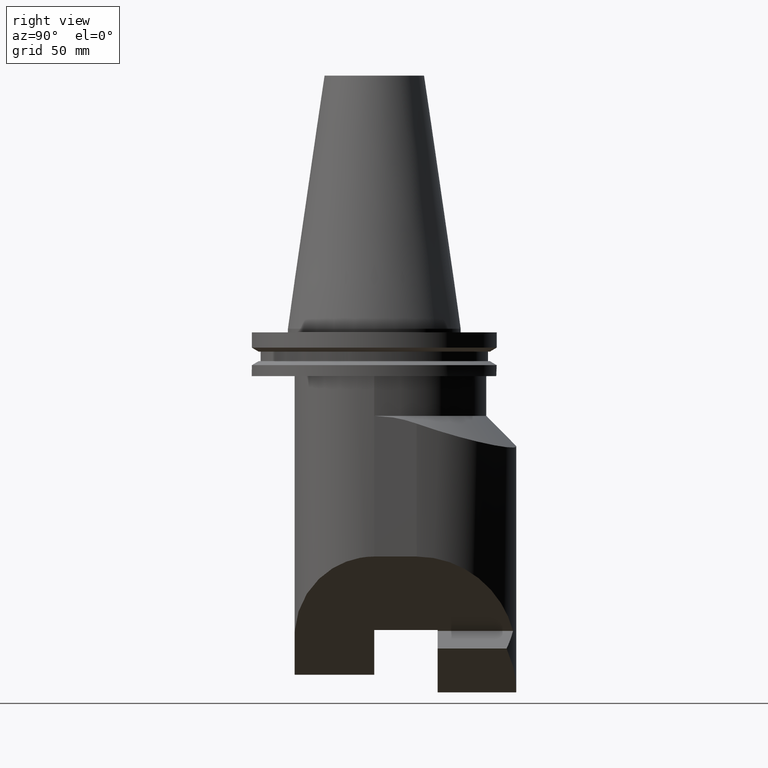
[diagram: clean part render]
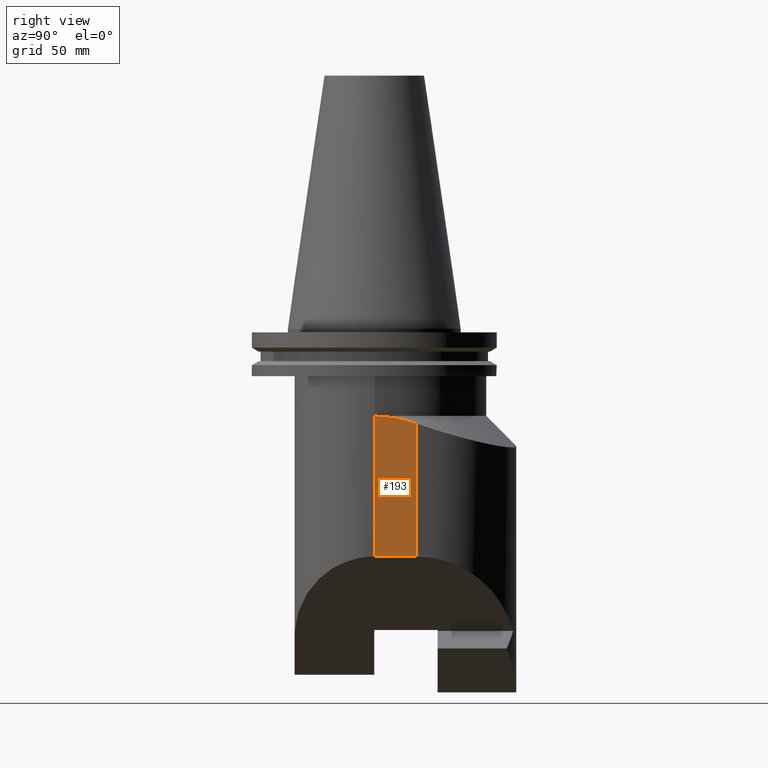
[diagram: same view with one face highlighted and labeled with its STEP entity id]
A machine part, right view. The second image highlights one B-rep face of the part: STEP entity #193.
In plain terms, the highlighted planar face has unit normal (-1, 0, -0).
Its self-contained STEP definition (entity closure, byte-faithful):
#153=EDGE_CURVE('Unnamed[1]',#420,#421,#422,.T.);
#157=EDGE_CURVE('Unnamed[1]',#420,#427,#428,.T.);
#193=ADVANCED_FACE('Unnamed[1]',(#483),#484,.F.);
#226=EDGE_CURVE('Unnamed[1]',#427,#511,#534,.T.);
#252=EDGE_CURVE('Unnamed[1]',#421,#511,#568,.T.);
#420=VERTEX_POINT('',#777);
#421=VERTEX_POINT('',#778);
#422=LINE('',#779,#780);
#427=VERTEX_POINT('',#787);
#428=LINE('',#788,#789);
#483=FACE_OUTER_BOUND('',#861,.T.);
#484=PLANE('',#862);
#511=VERTEX_POINT('',#899);
#534=(B_SPLINE_CURVE(2,(#976,#977,#978,#979,#980),.UNSPECIFIED.,.F.,.F.)B_SPLINE_CURVE_WITH_KNOTS((3,2,3),(0.0,55.8128554370287,111.625710874057),.UNSPECIFIED.)RATIONAL_B_SPLINE_CURVE((1.0,1.11803398875034,1.0,1.11803398875033,1.0))BOUNDED_CURVE()REPRESENTATION_ITEM('')GEOMETRIC_REPRESENTATION_ITEM()CURVE());
#568=LINE('',#1052,#1053);
#777=CARTESIAN_POINT('',(44.9999999999966,-1.42260928977808E-013,-91.4578643728107));
#778=CARTESIAN_POINT('',(44.9999999999966,16.9999999999998,-91.4578643728107));
#779=CARTESIAN_POINT('',(44.9999999999966,4.24999999999985,-91.4578643728107));
#780=VECTOR('',#1315,1.0);
#787=CARTESIAN_POINT('',(45.0000000000004,-4.0956928841068E-013,-35.0000000000011));
#788=CARTESIAN_POINT('',(45.0000000000001,-1.91904888245347E-013,-306.209870642012));
#789=VECTOR('',#1319,1.0);
#861=EDGE_LOOP('',(#1394,#1395,#1396,#1397));
#862=AXIS2_PLACEMENT_3D('',#1398,#1399,#1400);
#899=CARTESIAN_POINT('',(44.999999999998,16.9999999999998,-38.1040538832221));
#976=CARTESIAN_POINT('',(44.9999999999979,-50.3115294937471,-57.5000000000013));
#977=CARTESIAN_POINT('',(44.9999999999979,-20.1246117975009,-35.0000000000012));
#978=CARTESIAN_POINT('',(44.9999999999979,-3.48673095642632E-014,-35.0000000000012));
#979=CARTESIAN_POINT('',(44.999999999998,20.1246117975009,-35.0000000000012));
#980=CARTESIAN_POINT('',(44.999999999998,50.3115294937471,-57.5000000000014));
#1052=CARTESIAN_POINT('',(44.999999999998,16.9999999999998,-306.209870642012));
#1053=VECTOR('',#1476,1.0);
#1315=DIRECTION('',(6.01663335025104E-016,1.0,1.95921710351549E-016));
#1319=DIRECTION('',(-1.22464679914735E-016,2.22044604925031E-016,1.0));
#1394=ORIENTED_EDGE('',*,*,#153,.T.);
#1395=ORIENTED_EDGE('',*,*,#252,.T.);
#1396=ORIENTED_EDGE('',*,*,#226,.F.);
#1397=ORIENTED_EDGE('',*,*,#157,.F.);
#1398=CARTESIAN_POINT('',(44.999999999998,8.49999999999978,-306.209870642012));
#1399=DIRECTION('',(-1.0,6.01663335025105E-016,-1.22464679914735E-016));
#1400=DIRECTION('',(-6.01663335025105E-016,-1.0,2.22044604925031E-016));
#1476=DIRECTION('',(-1.22464679914735E-016,2.22044604925031E-016,1.0));